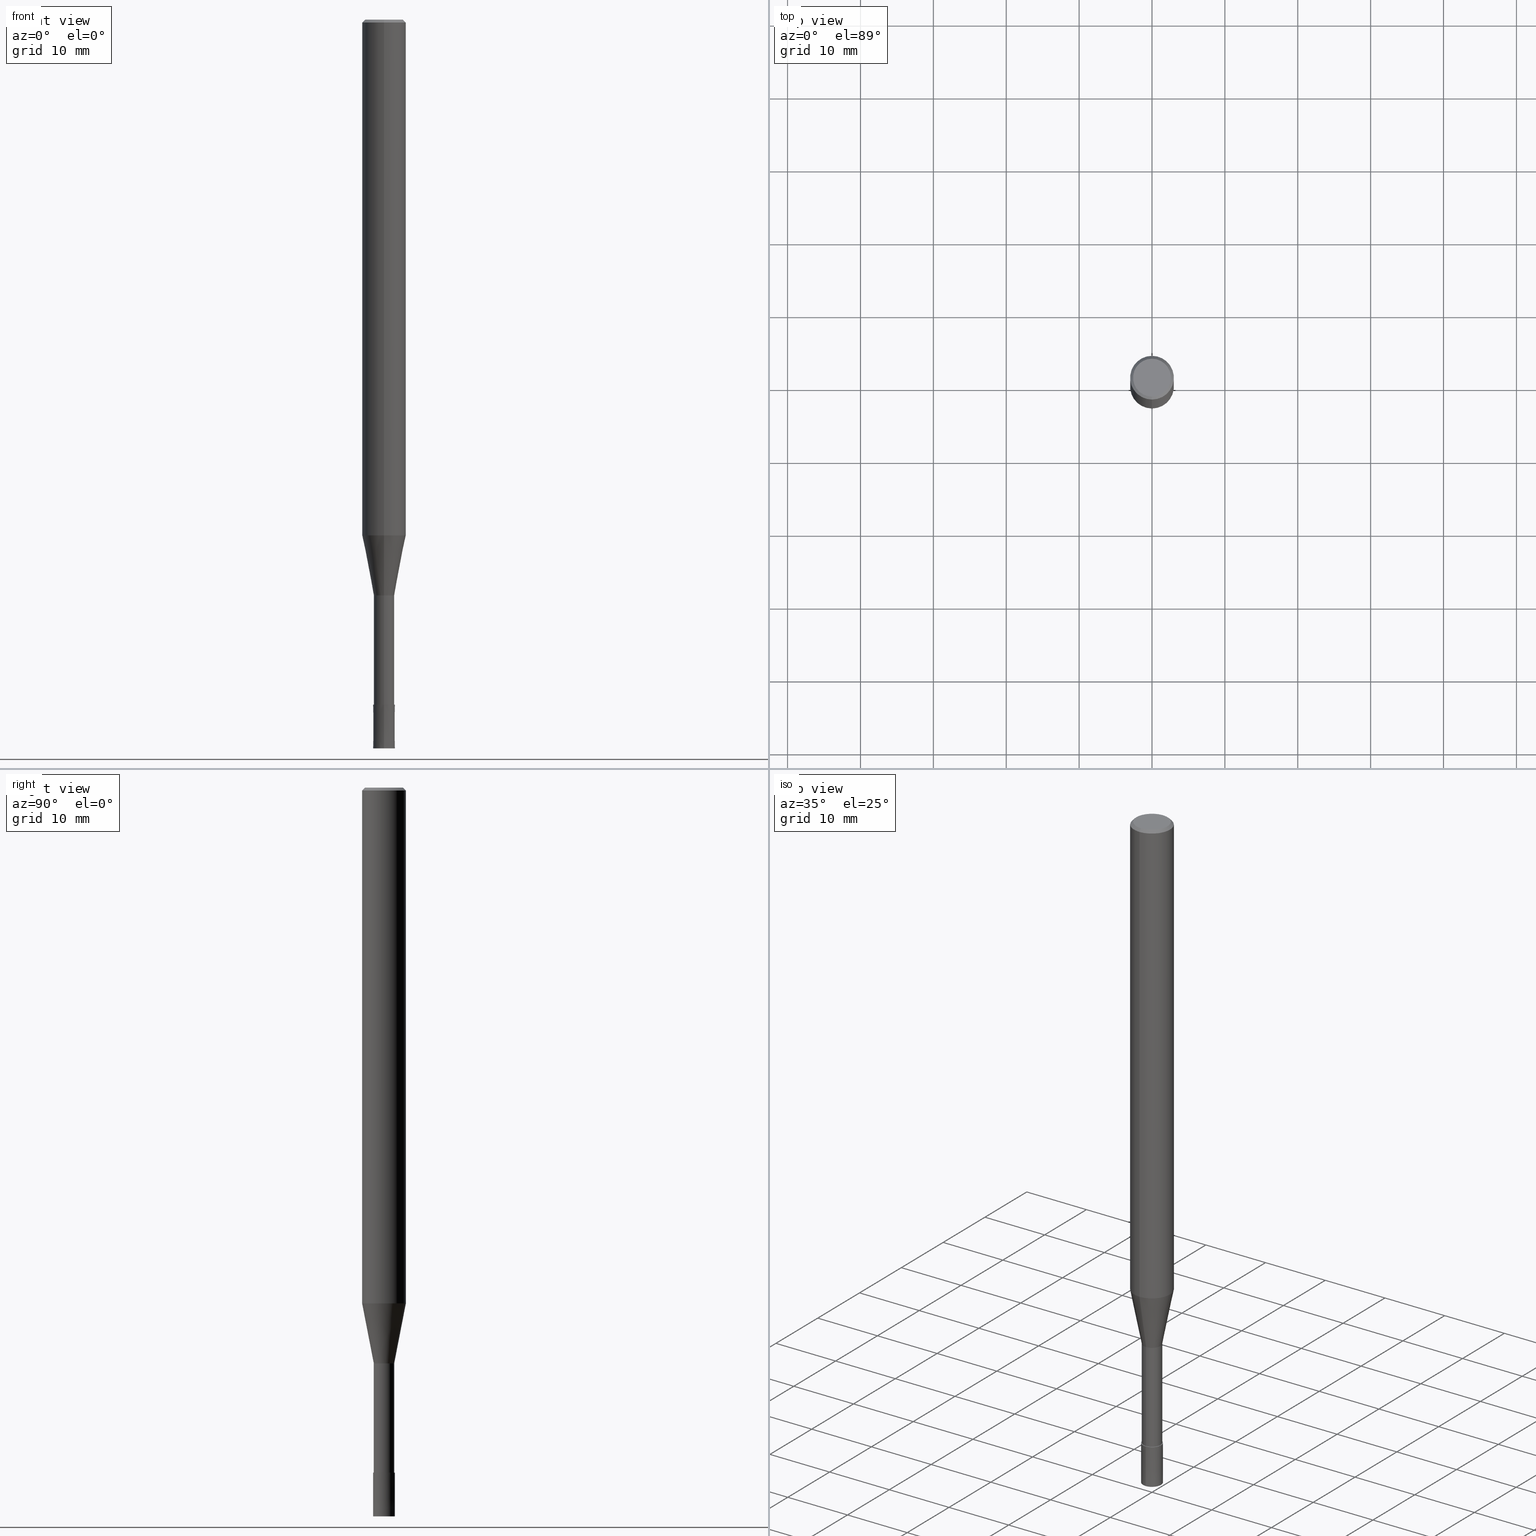
[diagram: canonical four-view strip — front | top / right | iso, engineering-drawing reading convention]
A machine part, canonical four-view strip (front | top / right | iso — engineering-drawing reading convention). The complete STEP part file that produces these views, byte-faithful:
ISO-10303-21;
HEADER;
FILE_DESCRIPTION(('no description'),'unknown implementation level');
FILE_NAME('CPRL2030-21-Huellk.stp','  ',('CIMSOURCE GmbH'),('CADClick - KiM GmbH - www.kimweb.de'),'unknown preprocess','ACIS','unknown authorization');
FILE_SCHEMA(('automotive_design'));
ENDSEC;
DATA;
#1=MECHANICAL_DESIGN_GEOMETRIC_PRESENTATION_REPRESENTATION(' ',(#14,#15,#16,#17,#18,#19,#20,#21,#22,#23,#24,#25,#26,#27,#28,#29,#30,#31,#32,#33,#34,#35,#36,#37,#38,#39,#40,#41,#42,#43,#44,#45,#46,#47,#48,#49,#50,#51,#52,#53,#54,#55,#56,#57,#58,#59,#60,#61,#62,#63,#64,#65,#66,#67,#68,#69,#70,#71,#72),#10);
#2=PRODUCT_DEFINITION_CONTEXT('',#73,'design');
#3=APPLICATION_PROTOCOL_DEFINITION('INTERNATIONAL STANDARD','automotive_design',1994,#73);
#4=PRODUCT_CATEGORY_RELATIONSHIP('NONE','NONE',#74,#75);
#5=SHAPE_DEFINITION_REPRESENTATION(#76,#77);
#6=PRODUCT_DEFINITION_CONTEXT('',#78,'design');
#7=APPLICATION_PROTOCOL_DEFINITION('INTERNATIONAL STANDARD','automotive_design',1994,#78);
#8=PRODUCT_CATEGORY_RELATIONSHIP('NONE','NONE',#79,#80);
#9=SHAPE_DEFINITION_REPRESENTATION(#81,#82);
#10= (GEOMETRIC_REPRESENTATION_CONTEXT(3)GLOBAL_UNCERTAINTY_ASSIGNED_CONTEXT((#85))GLOBAL_UNIT_ASSIGNED_CONTEXT((#87,#88,#89))REPRESENTATION_CONTEXT('NONE','WORKSPACE'));
#14=STYLED_ITEM('',(#91),#92);
#15=STYLED_ITEM('',(#93),#94);
#16=STYLED_ITEM('',(#95),#96);
#17=STYLED_ITEM('',(#97),#98);
#18=STYLED_ITEM('',(#99),#100);
#19=STYLED_ITEM('',(#101),#102);
#20=STYLED_ITEM('',(#103),#104);
#21=STYLED_ITEM('',(#105),#106);
#22=STYLED_ITEM('',(#107),#108);
#23=STYLED_ITEM('',(#109),#110);
#24=STYLED_ITEM('',(#111),#112);
#25=STYLED_ITEM('',(#113),#114);
#26=STYLED_ITEM('',(#115),#116);
#27=STYLED_ITEM('',(#117),#118);
#28=STYLED_ITEM('',(#119),#120);
#29=STYLED_ITEM('',(#121),#122);
#30=STYLED_ITEM('',(#123),#124);
#31=STYLED_ITEM('',(#125),#126);
#32=STYLED_ITEM('',(#127),#128);
#33=STYLED_ITEM('',(#129),#130);
#34=STYLED_ITEM('',(#131),#132);
#35=STYLED_ITEM('',(#133),#134);
#36=STYLED_ITEM('',(#135),#136);
#37=STYLED_ITEM('',(#137),#138);
#38=STYLED_ITEM('',(#139),#140);
#39=STYLED_ITEM('',(#141),#142);
#40=STYLED_ITEM('',(#143),#144);
#41=STYLED_ITEM('',(#145),#146);
#42=STYLED_ITEM('',(#147),#148);
#43=STYLED_ITEM('',(#149),#150);
#44=STYLED_ITEM('',(#151),#152);
#45=STYLED_ITEM('',(#153),#154);
#46=STYLED_ITEM('',(#155),#156);
#47=STYLED_ITEM('',(#157),#158);
#48=STYLED_ITEM('',(#159),#160);
#49=STYLED_ITEM('',(#161),#162);
#50=STYLED_ITEM('',(#163),#164);
#51=STYLED_ITEM('',(#165),#166);
#52=STYLED_ITEM('',(#167),#168);
#53=STYLED_ITEM('',(#169),#170);
#54=STYLED_ITEM('',(#171),#172);
#55=STYLED_ITEM('',(#173),#174);
#56=STYLED_ITEM('',(#175),#176);
#57=STYLED_ITEM('',(#177),#178);
#58=STYLED_ITEM('',(#179),#180);
#59=STYLED_ITEM('',(#181),#182);
#60=STYLED_ITEM('',(#183),#184);
#61=STYLED_ITEM('',(#185),#186);
#62=STYLED_ITEM('',(#187),#188);
#63=STYLED_ITEM('',(#189),#190);
#64=STYLED_ITEM('',(#191),#192);
#65=STYLED_ITEM('',(#193),#194);
#66=STYLED_ITEM('',(#195),#196);
#67=STYLED_ITEM('',(#197),#198);
#68=STYLED_ITEM('',(#199),#200);
#69=STYLED_ITEM('',(#201),#202);
#70=STYLED_ITEM('',(#203),#204);
#71=STYLED_ITEM('',(#205),#206);
#72=STYLED_ITEM('',(#207),#208);
#73=APPLICATION_CONTEXT(' ');
#74=PRODUCT_CATEGORY('part','NONE');
#75=PRODUCT_RELATED_PRODUCT_CATEGORY('detail',' ',(#209));
#76=PRODUCT_DEFINITION_SHAPE('NONE','NONE',#210);
#77=ADVANCED_BREP_SHAPE_REPRESENTATION('1',(#164,#211),#10);
#78=APPLICATION_CONTEXT(' ');
#79=PRODUCT_CATEGORY('part','NONE');
#80=PRODUCT_RELATED_PRODUCT_CATEGORY('detail',' ',(#212));
#81=PRODUCT_DEFINITION_SHAPE('NONE','NONE',#213);
#82=ADVANCED_BREP_SHAPE_REPRESENTATION('2',(#198,#214),#10);
#85=UNCERTAINTY_MEASURE_WITH_UNIT(LENGTH_MEASURE(1.0E-006),#87,'','');
#87= (CONVERSION_BASED_UNIT('MILLIMETRE',#217)LENGTH_UNIT()NAMED_UNIT(#220));
#88= (NAMED_UNIT(#222)PLANE_ANGLE_UNIT()SI_UNIT($,.RADIAN.));
#89= (NAMED_UNIT(#222)SOLID_ANGLE_UNIT()SI_UNIT($,.STERADIAN.));
#91=PRESENTATION_STYLE_ASSIGNMENT((#228));
#92=ADVANCED_FACE('',(#229),#230,.T.);
#93=PRESENTATION_STYLE_ASSIGNMENT((#231));
#94=EDGE_CURVE('',#208,#142,#232,.T.);
#95=PRESENTATION_STYLE_ASSIGNMENT((#233));
#96=VERTEX_POINT('',#234);
#97=PRESENTATION_STYLE_ASSIGNMENT((#235));
#98=VERTEX_POINT('',#236);
#99=PRESENTATION_STYLE_ASSIGNMENT((#237));
#100=ADVANCED_FACE('',(#238),#239,.T.);
#101=PRESENTATION_STYLE_ASSIGNMENT((#240));
#102=EDGE_CURVE('',#172,#208,#241,.T.);
#103=PRESENTATION_STYLE_ASSIGNMENT((#242));
#104=VERTEX_POINT('',#243);
#105=PRESENTATION_STYLE_ASSIGNMENT((#244));
#106=ADVANCED_FACE('',(#245),#246,.T.);
#107=PRESENTATION_STYLE_ASSIGNMENT((#247));
#108=ADVANCED_FACE('',(#248),#249,.T.);
#109=PRESENTATION_STYLE_ASSIGNMENT((#250));
#110=ADVANCED_FACE('',(#251),#252,.T.);
#111=PRESENTATION_STYLE_ASSIGNMENT((#253));
#112=VERTEX_POINT('',#254);
#113=PRESENTATION_STYLE_ASSIGNMENT((#255));
#114=ADVANCED_FACE('',(#256),#257,.T.);
#115=PRESENTATION_STYLE_ASSIGNMENT((#258));
#116=VERTEX_POINT('',#259);
#117=PRESENTATION_STYLE_ASSIGNMENT((#260));
#118=VERTEX_POINT('',#261);
#119=PRESENTATION_STYLE_ASSIGNMENT((#262));
#120=EDGE_CURVE('',#204,#112,#263,.T.);
#121=PRESENTATION_STYLE_ASSIGNMENT((#264));
#122=EDGE_CURVE('',#96,#194,#265,.T.);
#123=PRESENTATION_STYLE_ASSIGNMENT((#266));
#124=EDGE_CURVE('',#112,#204,#267,.T.);
#125=PRESENTATION_STYLE_ASSIGNMENT((#268));
#126=EDGE_CURVE('',#150,#116,#269,.T.);
#127=PRESENTATION_STYLE_ASSIGNMENT((#270));
#128=EDGE_CURVE('',#168,#118,#271,.T.);
#129=PRESENTATION_STYLE_ASSIGNMENT((#272));
#130=ADVANCED_FACE('',(#273),#274,.T.);
#131=PRESENTATION_STYLE_ASSIGNMENT((#275));
#132=EDGE_CURVE('',#98,#158,#276,.T.);
#133=PRESENTATION_STYLE_ASSIGNMENT((#277));
#134=ADVANCED_FACE('',(#278),#279,.T.);
#135=PRESENTATION_STYLE_ASSIGNMENT((#280));
#136=ADVANCED_FACE('',(#281),#282,.T.);
#137=PRESENTATION_STYLE_ASSIGNMENT((#283));
#138=EDGE_CURVE('',#96,#140,#284,.T.);
#139=PRESENTATION_STYLE_ASSIGNMENT((#285));
#140=VERTEX_POINT('',#286);
#141=PRESENTATION_STYLE_ASSIGNMENT((#287));
#142=VERTEX_POINT('',#288);
#143=PRESENTATION_STYLE_ASSIGNMENT((#289));
#144=ADVANCED_FACE('',(#290),#291,.T.);
#145=PRESENTATION_STYLE_ASSIGNMENT((#292));
#146=EDGE_CURVE('',#168,#150,#293,.T.);
#147=PRESENTATION_STYLE_ASSIGNMENT((#294));
#148=EDGE_CURVE('',#160,#140,#295,.T.);
#149=PRESENTATION_STYLE_ASSIGNMENT((#296));
#150=VERTEX_POINT('',#297);
#151=PRESENTATION_STYLE_ASSIGNMENT((#298));
#152=EDGE_CURVE('',#140,#96,#299,.T.);
#153=PRESENTATION_STYLE_ASSIGNMENT((#300));
#154=EDGE_CURVE('',#142,#104,#301,.T.);
#155=PRESENTATION_STYLE_ASSIGNMENT((#302));
#156=ADVANCED_FACE('',(#303),#304,.T.);
#157=PRESENTATION_STYLE_ASSIGNMENT((#305));
#158=VERTEX_POINT('',#306);
#159=PRESENTATION_STYLE_ASSIGNMENT((#307));
#160=VERTEX_POINT('',#308);
#161=PRESENTATION_STYLE_ASSIGNMENT((#309));
#162=EDGE_CURVE('',#158,#98,#310,.T.);
#163=PRESENTATION_STYLE_ASSIGNMENT((#311));
#164=MANIFOLD_SOLID_BREP('1',#312);
#165=PRESENTATION_STYLE_ASSIGNMENT((#313));
#166=EDGE_CURVE('',#204,#96,#314,.T.);
#167=PRESENTATION_STYLE_ASSIGNMENT((#315));
#168=VERTEX_POINT('',#316);
#169=PRESENTATION_STYLE_ASSIGNMENT((#317));
#170=EDGE_CURVE('',#116,#118,#318,.T.);
#171=PRESENTATION_STYLE_ASSIGNMENT((#319));
#172=VERTEX_POINT('',#320);
#173=PRESENTATION_STYLE_ASSIGNMENT((#321));
#174=EDGE_CURVE('',#160,#194,#322,.T.);
#175=PRESENTATION_STYLE_ASSIGNMENT((#323));
#176=ADVANCED_FACE('',(#324),#325,.T.);
#177=PRESENTATION_STYLE_ASSIGNMENT((#326));
#178=EDGE_CURVE('',#140,#112,#327,.T.);
#179=PRESENTATION_STYLE_ASSIGNMENT((#328));
#180=EDGE_CURVE('',#116,#150,#329,.T.);
#181=PRESENTATION_STYLE_ASSIGNMENT((#330));
#182=EDGE_CURVE('',#142,#158,#331,.T.);
#183=PRESENTATION_STYLE_ASSIGNMENT((#332));
#184=EDGE_CURVE('',#98,#104,#333,.T.);
#185=PRESENTATION_STYLE_ASSIGNMENT((#334));
#186=ADVANCED_FACE('',(#335,#336),#337,.T.);
#187=PRESENTATION_STYLE_ASSIGNMENT((#338));
#188=ADVANCED_FACE('',(#339),#340,.T.);
#189=PRESENTATION_STYLE_ASSIGNMENT((#341));
#190=EDGE_CURVE('',#194,#160,#342,.T.);
#191=PRESENTATION_STYLE_ASSIGNMENT((#343));
#192=EDGE_CURVE('',#208,#172,#344,.T.);
#193=PRESENTATION_STYLE_ASSIGNMENT((#345));
#194=VERTEX_POINT('',#346);
#195=PRESENTATION_STYLE_ASSIGNMENT((#347));
#196=EDGE_CURVE('',#118,#168,#348,.T.);
#197=PRESENTATION_STYLE_ASSIGNMENT((#349));
#198=MANIFOLD_SOLID_BREP('2',#350);
#199=PRESENTATION_STYLE_ASSIGNMENT((#351));
#200=EDGE_CURVE('',#104,#172,#352,.T.);
#201=PRESENTATION_STYLE_ASSIGNMENT((#353));
#202=ADVANCED_FACE('',(#354),#355,.T.);
#203=PRESENTATION_STYLE_ASSIGNMENT((#356));
#204=VERTEX_POINT('',#357);
#205=PRESENTATION_STYLE_ASSIGNMENT((#358));
#206=EDGE_CURVE('',#104,#142,#359,.T.);
#207=PRESENTATION_STYLE_ASSIGNMENT((#360));
#208=VERTEX_POINT('',#361);
#209=PRODUCT('1','1','PART-1-DESC',(#362));
#210=PRODUCT_DEFINITION('NONE','NONE',#363,#2);
#211=AXIS2_PLACEMENT_3D('',#364,#365,#366);
#212=PRODUCT('2','2','PART-2-DESC',(#367));
#213=PRODUCT_DEFINITION('NONE','NONE',#368,#6);
#214=AXIS2_PLACEMENT_3D('',#369,#370,#371);
#217=LENGTH_MEASURE_WITH_UNIT(LENGTH_MEASURE(1.0),#372);
#220=DIMENSIONAL_EXPONENTS(1.0,0.0,0.0,0.0,0.0,0.0,0.0);
#222=DIMENSIONAL_EXPONENTS(0.0,0.0,0.0,0.0,0.0,0.0,0.0);
#228=SURFACE_STYLE_USAGE(.BOTH.,#373);
#229=FACE_OUTER_BOUND('',#374,.T.);
#230=CONICAL_SURFACE('',#375,2.19995,0.191992735564386);
#231=CURVE_STYLE('',#376,POSITIVE_LENGTH_MEASURE(1.0E-006),#377);
#232=LINE('',#378,#379);
#233=POINT_STYLE(' ',#380,POSITIVE_LENGTH_MEASURE(1.0E-006),#381);
#234=CARTESIAN_POINT('',(0.0,1.39995,-79.0));
#235=POINT_STYLE(' ',#382,POSITIVE_LENGTH_MEASURE(1.0E-006),#383);
#236=CARTESIAN_POINT('',(0.0,2.6,0.0));
#237=SURFACE_STYLE_USAGE(.BOTH.,#384);
#238=FACE_OUTER_BOUND('',#385,.T.);
#239=PLANE('',#386);
#240=CURVE_STYLE('',#387,POSITIVE_LENGTH_MEASURE(1.0E-006),#388);
#241=CIRCLE('',#389,3.0);
#242=POINT_STYLE(' ',#390,POSITIVE_LENGTH_MEASURE(1.0E-006),#391);
#243=CARTESIAN_POINT('',(0.0,3.0,-0.400000000000006));
#244=SURFACE_STYLE_USAGE(.BOTH.,#392);
#245=FACE_OUTER_BOUND('',#393,.T.);
#246=CYLINDRICAL_SURFACE('',#394,3.0);
#247=SURFACE_STYLE_USAGE(.BOTH.,#395);
#248=FACE_OUTER_BOUND('',#396,.T.);
#249=PLANE('',#397);
#250=SURFACE_STYLE_USAGE(.BOTH.,#398);
#251=FACE_OUTER_BOUND('',#399,.T.);
#252=CONICAL_SURFACE('',#400,1.49995,1.66666666651216E-005);
#253=POINT_STYLE(' ',#401,POSITIVE_LENGTH_MEASURE(1.0E-006),#402);
#254=CARTESIAN_POINT('',(3.67375783114944E-016,-2.99995,-70.769));
#255=SURFACE_STYLE_USAGE(.BOTH.,#403);
#256=FACE_OUTER_BOUND('',#404,.T.);
#257=CYLINDRICAL_SURFACE('',#405,1.39995);
#258=POINT_STYLE(' ',#406,POSITIVE_LENGTH_MEASURE(1.0E-006),#407);
#259=CARTESIAN_POINT('',(1.83690953073357E-016,-1.5,-100.0));
#260=POINT_STYLE(' ',#408,POSITIVE_LENGTH_MEASURE(1.0E-006),#409);
#261=CARTESIAN_POINT('',(1.83678707009818E-016,-1.4999,-94.0));
#262=CURVE_STYLE('',#410,POSITIVE_LENGTH_MEASURE(1.0E-006),#411);
#263=CIRCLE('',#412,2.99995);
#264=CURVE_STYLE('',#413,POSITIVE_LENGTH_MEASURE(1.0E-006),#414);
#265=LINE('',#415,#416);
#266=CURVE_STYLE('',#417,POSITIVE_LENGTH_MEASURE(1.0E-006),#418);
#267=CIRCLE('',#419,2.99995);
#268=CURVE_STYLE('',#420,POSITIVE_LENGTH_MEASURE(1.0E-006),#421);
#269=CIRCLE('',#422,1.5);
#270=CURVE_STYLE('',#423,POSITIVE_LENGTH_MEASURE(1.0E-006),#424);
#271=CIRCLE('',#425,1.4999);
#272=SURFACE_STYLE_USAGE(.BOTH.,#426);
#273=FACE_OUTER_BOUND('',#427,.T.);
#274=CYLINDRICAL_SURFACE('',#428,3.0);
#275=CURVE_STYLE('',#429,POSITIVE_LENGTH_MEASURE(1.0E-006),#430);
#276=CIRCLE('',#431,2.6);
#277=SURFACE_STYLE_USAGE(.BOTH.,#432);
#278=FACE_OUTER_BOUND('',#433,.T.);
#279=CONICAL_SURFACE('',#434,2.19995,0.191992735564386);
#280=SURFACE_STYLE_USAGE(.BOTH.,#435);
#281=FACE_OUTER_BOUND('',#436,.T.);
#282=CONICAL_SURFACE('',#437,2.8,0.785398163397441);
#283=CURVE_STYLE('',#438,POSITIVE_LENGTH_MEASURE(1.0E-006),#439);
#284=CIRCLE('',#440,1.39995);
#285=POINT_STYLE(' ',#441,POSITIVE_LENGTH_MEASURE(1.0E-006),#442);
#286=CARTESIAN_POINT('',(1.71438766503364E-016,-1.39995,-79.0));
#287=POINT_STYLE(' ',#443,POSITIVE_LENGTH_MEASURE(1.0E-006),#444);
#288=CARTESIAN_POINT('',(3.67381906146713E-016,-3.0,-0.400000000000006));
#289=SURFACE_STYLE_USAGE(.BOTH.,#445);
#290=FACE_OUTER_BOUND('',#446,.T.);
#291=PLANE('',#447);
#292=CURVE_STYLE('',#448,POSITIVE_LENGTH_MEASURE(1.0E-006),#449);
#293=LINE('',#450,#451);
#294=CURVE_STYLE('',#452,POSITIVE_LENGTH_MEASURE(1.0E-006),#453);
#295=LINE('',#454,#455);
#296=POINT_STYLE(' ',#456,POSITIVE_LENGTH_MEASURE(1.0E-006),#457);
#297=CARTESIAN_POINT('',(0.0,1.5,-100.0));
#298=CURVE_STYLE('',#458,POSITIVE_LENGTH_MEASURE(1.0E-006),#459);
#299=CIRCLE('',#460,1.39995);
#300=CURVE_STYLE('',#461,POSITIVE_LENGTH_MEASURE(1.0E-006),#462);
#301=CIRCLE('',#463,3.0);
#302=SURFACE_STYLE_USAGE(.BOTH.,#464);
#303=FACE_OUTER_BOUND('',#465,.T.);
#304=CYLINDRICAL_SURFACE('',#466,1.39995);
#305=POINT_STYLE(' ',#467,POSITIVE_LENGTH_MEASURE(1.0E-006),#468);
#306=CARTESIAN_POINT('',(3.18397651993818E-016,-2.6,0.0));
#307=POINT_STYLE(' ',#469,POSITIVE_LENGTH_MEASURE(1.0E-006),#470);
#308=CARTESIAN_POINT('',(1.71438766503364E-016,-1.39995,-94.0));
#309=CURVE_STYLE('',#471,POSITIVE_LENGTH_MEASURE(1.0E-006),#472);
#310=CIRCLE('',#473,2.6);
#311=SURFACE_STYLE_USAGE(.BOTH.,#474);
#312=CLOSED_SHELL('',(#156,#134,#106,#188,#186,#176,#136,#130,#92,#114,#100));
#313=CURVE_STYLE('',#475,POSITIVE_LENGTH_MEASURE(1.0E-006),#476);
#314=LINE('',#477,#478);
#315=POINT_STYLE(' ',#479,POSITIVE_LENGTH_MEASURE(1.0E-006),#480);
#316=CARTESIAN_POINT('',(0.0,1.4999,-94.0));
#317=CURVE_STYLE('',#481,POSITIVE_LENGTH_MEASURE(1.0E-006),#482);
#318=LINE('',#483,#484);
#319=POINT_STYLE(' ',#485,POSITIVE_LENGTH_MEASURE(1.0E-006),#486);
#320=CARTESIAN_POINT('',(0.0,3.0,-70.769));
#321=CURVE_STYLE('',#487,POSITIVE_LENGTH_MEASURE(1.0E-006),#488);
#322=CIRCLE('',#489,1.39995);
#323=SURFACE_STYLE_USAGE(.BOTH.,#490);
#324=FACE_OUTER_BOUND('',#491,.T.);
#325=PLANE('',#492);
#326=CURVE_STYLE('',#493,POSITIVE_LENGTH_MEASURE(1.0E-006),#494);
#327=LINE('',#495,#496);
#328=CURVE_STYLE('',#497,POSITIVE_LENGTH_MEASURE(1.0E-006),#498);
#329=CIRCLE('',#499,1.5);
#330=CURVE_STYLE('',#500,POSITIVE_LENGTH_MEASURE(1.0E-006),#501);
#331=LINE('',#502,#503);
#332=CURVE_STYLE('',#504,POSITIVE_LENGTH_MEASURE(1.0E-006),#505);
#333=LINE('',#506,#507);
#334=SURFACE_STYLE_USAGE(.BOTH.,#508);
#335=FACE_OUTER_BOUND('',#509,.T.);
#336=FACE_BOUND('',#510,.T.);
#337=PLANE('',#511);
#338=SURFACE_STYLE_USAGE(.BOTH.,#512);
#339=FACE_OUTER_BOUND('',#513,.T.);
#340=CONICAL_SURFACE('',#514,2.8,0.785398163397441);
#341=CURVE_STYLE('',#515,POSITIVE_LENGTH_MEASURE(1.0E-006),#516);
#342=CIRCLE('',#517,1.39995);
#343=CURVE_STYLE('',#518,POSITIVE_LENGTH_MEASURE(1.0E-006),#519);
#344=CIRCLE('',#520,3.0);
#345=POINT_STYLE(' ',#521,POSITIVE_LENGTH_MEASURE(1.0E-006),#522);
#346=CARTESIAN_POINT('',(0.0,1.39995,-94.0));
#347=CURVE_STYLE('',#523,POSITIVE_LENGTH_MEASURE(1.0E-006),#524);
#348=CIRCLE('',#525,1.4999);
#349=SURFACE_STYLE_USAGE(.BOTH.,#526);
#350=CLOSED_SHELL('',(#110,#108,#202,#144));
#351=CURVE_STYLE('',#527,POSITIVE_LENGTH_MEASURE(1.0E-006),#528);
#352=LINE('',#529,#530);
#353=SURFACE_STYLE_USAGE(.BOTH.,#531);
#354=FACE_OUTER_BOUND('',#532,.T.);
#355=CONICAL_SURFACE('',#533,1.49995,1.66666666651216E-005);
#356=POINT_STYLE(' ',#534,POSITIVE_LENGTH_MEASURE(1.0E-006),#535);
#357=CARTESIAN_POINT('',(0.0,2.99995,-70.769));
#358=CURVE_STYLE('',#536,POSITIVE_LENGTH_MEASURE(1.0E-006),#537);
#359=CIRCLE('',#538,3.0);
#360=POINT_STYLE(' ',#539,POSITIVE_LENGTH_MEASURE(1.0E-006),#540);
#361=CARTESIAN_POINT('',(3.67381906146713E-016,-3.0,-70.769));
#362=PRODUCT_CONTEXT('',#73,'mechanical');
#363=PRODUCT_DEFINITION_FORMATION_WITH_SPECIFIED_SOURCE(' ','NONE',#209,.NOT_KNOWN.);
#364=CARTESIAN_POINT('',(0.0,0.0,0.0));
#365=DIRECTION('',(0.0,0.0,1.0));
#366=DIRECTION('',(1.0,0.0,0.0));
#367=PRODUCT_CONTEXT('',#78,'mechanical');
#368=PRODUCT_DEFINITION_FORMATION_WITH_SPECIFIED_SOURCE(' ','NONE',#212,.NOT_KNOWN.);
#369=CARTESIAN_POINT('',(0.0,0.0,0.0));
#370=DIRECTION('',(0.0,0.0,1.0));
#371=DIRECTION('',(1.0,0.0,0.0));
#372= (NAMED_UNIT(#220)LENGTH_UNIT()SI_UNIT(.MILLI.,.METRE.));
#373=SURFACE_SIDE_STYLE('',(#542));
#374=EDGE_LOOP('',(#543,#544,#545,#546));
#375=AXIS2_PLACEMENT_3D('',#547,#548,#549);
#376=DRAUGHTING_PRE_DEFINED_CURVE_FONT('continuous');
#377=COLOUR_RGB('',0.498039215803146,0.498039215803146,0.498039215803146);
#378=CARTESIAN_POINT('',(3.67381906146713E-016,-3.0,-35.5845));
#379=VECTOR('',#550,1.0);
#380=PRE_DEFINED_MARKER('');
#381=COLOUR_RGB('',0.498039215803146,0.498039215803146,0.498039215803146);
#382=PRE_DEFINED_MARKER('');
#383=COLOUR_RGB('',0.498039215803146,0.498039215803146,0.498039215803146);
#384=SURFACE_SIDE_STYLE('',(#551));
#385=EDGE_LOOP('',(#552,#553));
#386=AXIS2_PLACEMENT_3D('',#554,#555,#556);
#387=DRAUGHTING_PRE_DEFINED_CURVE_FONT('continuous');
#388=COLOUR_RGB('',0.498039215803146,0.498039215803146,0.498039215803146);
#389=AXIS2_PLACEMENT_3D('',#557,#558,#559);
#390=PRE_DEFINED_MARKER('');
#391=COLOUR_RGB('',0.498039215803146,0.498039215803146,0.498039215803146);
#392=SURFACE_SIDE_STYLE('',(#560));
#393=EDGE_LOOP('',(#561,#562,#563,#564));
#394=AXIS2_PLACEMENT_3D('',#565,#566,#567);
#395=SURFACE_SIDE_STYLE('',(#568));
#396=EDGE_LOOP('',(#569,#570));
#397=AXIS2_PLACEMENT_3D('',#571,#572,#573);
#398=SURFACE_SIDE_STYLE('',(#574));
#399=EDGE_LOOP('',(#575,#576,#577,#578));
#400=AXIS2_PLACEMENT_3D('',#579,#580,#581);
#401=PRE_DEFINED_MARKER('');
#402=COLOUR_RGB('',0.498039215803146,0.498039215803146,0.498039215803146);
#403=SURFACE_SIDE_STYLE('',(#582));
#404=EDGE_LOOP('',(#583,#584,#585,#586));
#405=AXIS2_PLACEMENT_3D('',#587,#588,#589);
#406=PRE_DEFINED_MARKER('');
#407=COLOUR_RGB('',0.800000011920929,0.800000011920929,0.800000011920929);
#408=PRE_DEFINED_MARKER('');
#409=COLOUR_RGB('',0.800000011920929,0.800000011920929,0.800000011920929);
#410=DRAUGHTING_PRE_DEFINED_CURVE_FONT('continuous');
#411=COLOUR_RGB('',0.498039215803146,0.498039215803146,0.498039215803146);
#412=AXIS2_PLACEMENT_3D('',#590,#591,#592);
#413=DRAUGHTING_PRE_DEFINED_CURVE_FONT('continuous');
#414=COLOUR_RGB('',0.498039215803146,0.498039215803146,0.498039215803146);
#415=CARTESIAN_POINT('',(-1.71438766503364E-016,1.39995,-86.5));
#416=VECTOR('',#593,1.0);
#417=DRAUGHTING_PRE_DEFINED_CURVE_FONT('continuous');
#418=COLOUR_RGB('',0.498039215803146,0.498039215803146,0.498039215803146);
#419=AXIS2_PLACEMENT_3D('',#594,#595,#596);
#420=DRAUGHTING_PRE_DEFINED_CURVE_FONT('continuous');
#421=COLOUR_RGB('',0.800000011920929,0.800000011920929,0.800000011920929);
#422=AXIS2_PLACEMENT_3D('',#597,#598,#599);
#423=DRAUGHTING_PRE_DEFINED_CURVE_FONT('continuous');
#424=COLOUR_RGB('',0.800000011920929,0.800000011920929,0.800000011920929);
#425=AXIS2_PLACEMENT_3D('',#600,#601,#602);
#426=SURFACE_SIDE_STYLE('',(#603));
#427=EDGE_LOOP('',(#604,#605,#606,#607));
#428=AXIS2_PLACEMENT_3D('',#608,#609,#610);
#429=DRAUGHTING_PRE_DEFINED_CURVE_FONT('continuous');
#430=COLOUR_RGB('',0.498039215803146,0.498039215803146,0.498039215803146);
#431=AXIS2_PLACEMENT_3D('',#611,#612,#613);
#432=SURFACE_SIDE_STYLE('',(#614));
#433=EDGE_LOOP('',(#615,#616,#617,#618));
#434=AXIS2_PLACEMENT_3D('',#619,#620,#621);
#435=SURFACE_SIDE_STYLE('',(#622));
#436=EDGE_LOOP('',(#623,#624,#625,#626));
#437=AXIS2_PLACEMENT_3D('',#627,#628,#629);
#438=DRAUGHTING_PRE_DEFINED_CURVE_FONT('continuous');
#439=COLOUR_RGB('',0.498039215803146,0.498039215803146,0.498039215803146);
#440=AXIS2_PLACEMENT_3D('',#630,#631,#632);
#441=PRE_DEFINED_MARKER('');
#442=COLOUR_RGB('',0.498039215803146,0.498039215803146,0.498039215803146);
#443=PRE_DEFINED_MARKER('');
#444=COLOUR_RGB('',0.498039215803146,0.498039215803146,0.498039215803146);
#445=SURFACE_SIDE_STYLE('',(#633));
#446=EDGE_LOOP('',(#634,#635));
#447=AXIS2_PLACEMENT_3D('',#636,#637,#638);
#448=DRAUGHTING_PRE_DEFINED_CURVE_FONT('continuous');
#449=COLOUR_RGB('',0.800000011920929,0.800000011920929,0.800000011920929);
#450=CARTESIAN_POINT('',(-1.83684830041587E-016,1.49995,-97.0));
#451=VECTOR('',#639,1.0);
#452=DRAUGHTING_PRE_DEFINED_CURVE_FONT('continuous');
#453=COLOUR_RGB('',0.498039215803146,0.498039215803146,0.498039215803146);
#454=CARTESIAN_POINT('',(1.71438766503364E-016,-1.39995,-86.5));
#455=VECTOR('',#640,1.0);
#456=PRE_DEFINED_MARKER('');
#457=COLOUR_RGB('',0.800000011920929,0.800000011920929,0.800000011920929);
#458=DRAUGHTING_PRE_DEFINED_CURVE_FONT('continuous');
#459=COLOUR_RGB('',0.498039215803146,0.498039215803146,0.498039215803146);
#460=AXIS2_PLACEMENT_3D('',#641,#642,#643);
#461=DRAUGHTING_PRE_DEFINED_CURVE_FONT('continuous');
#462=COLOUR_RGB('',0.498039215803146,0.498039215803146,0.498039215803146);
#463=AXIS2_PLACEMENT_3D('',#644,#645,#646);
#464=SURFACE_SIDE_STYLE('',(#647));
#465=EDGE_LOOP('',(#648,#649,#650,#651));
#466=AXIS2_PLACEMENT_3D('',#652,#653,#654);
#467=PRE_DEFINED_MARKER('');
#468=COLOUR_RGB('',0.498039215803146,0.498039215803146,0.498039215803146);
#469=PRE_DEFINED_MARKER('');
#470=COLOUR_RGB('',0.498039215803146,0.498039215803146,0.498039215803146);
#471=DRAUGHTING_PRE_DEFINED_CURVE_FONT('continuous');
#472=COLOUR_RGB('',0.498039215803146,0.498039215803146,0.498039215803146);
#473=AXIS2_PLACEMENT_3D('',#655,#656,#657);
#474=SURFACE_SIDE_STYLE('',(#658));
#475=DRAUGHTING_PRE_DEFINED_CURVE_FONT('continuous');
#476=COLOUR_RGB('',0.498039215803146,0.498039215803146,0.498039215803146);
#477=CARTESIAN_POINT('',(-2.69407274809154E-016,2.19995,-74.8845));
#478=VECTOR('',#659,1.0);
#479=PRE_DEFINED_MARKER('');
#480=COLOUR_RGB('',0.800000011920929,0.800000011920929,0.800000011920929);
#481=DRAUGHTING_PRE_DEFINED_CURVE_FONT('continuous');
#482=COLOUR_RGB('',0.800000011920929,0.800000011920929,0.800000011920929);
#483=CARTESIAN_POINT('',(1.83684830041587E-016,-1.49995,-97.0));
#484=VECTOR('',#660,1.0);
#485=PRE_DEFINED_MARKER('');
#486=COLOUR_RGB('',0.498039215803146,0.498039215803146,0.498039215803146);
#487=DRAUGHTING_PRE_DEFINED_CURVE_FONT('continuous');
#488=COLOUR_RGB('',0.498039215803146,0.498039215803146,0.498039215803146);
#489=AXIS2_PLACEMENT_3D('',#661,#662,#663);
#490=SURFACE_SIDE_STYLE('',(#664));
#491=EDGE_LOOP('',(#665,#666));
#492=AXIS2_PLACEMENT_3D('',#667,#668,#669);
#493=DRAUGHTING_PRE_DEFINED_CURVE_FONT('continuous');
#494=COLOUR_RGB('',0.498039215803146,0.498039215803146,0.498039215803146);
#495=CARTESIAN_POINT('',(2.69407274809154E-016,-2.19995,-74.8845));
#496=VECTOR('',#670,1.0);
#497=DRAUGHTING_PRE_DEFINED_CURVE_FONT('continuous');
#498=COLOUR_RGB('',0.800000011920929,0.800000011920929,0.800000011920929);
#499=AXIS2_PLACEMENT_3D('',#671,#672,#673);
#500=DRAUGHTING_PRE_DEFINED_CURVE_FONT('continuous');
#501=COLOUR_RGB('',0.498039215803146,0.498039215803146,0.498039215803146);
#502=CARTESIAN_POINT('',(3.42889779070266E-016,-2.8,-0.200000000000003));
#503=VECTOR('',#674,1.0);
#504=DRAUGHTING_PRE_DEFINED_CURVE_FONT('continuous');
#505=COLOUR_RGB('',0.498039215803146,0.498039215803146,0.498039215803146);
#506=CARTESIAN_POINT('',(-3.42889779070266E-016,2.8,-0.200000000000003));
#507=VECTOR('',#675,1.0);
#508=SURFACE_SIDE_STYLE('',(#676));
#509=EDGE_LOOP('',(#677,#678));
#510=EDGE_LOOP('',(#679,#680));
#511=AXIS2_PLACEMENT_3D('',#681,#682,#683);
#512=SURFACE_SIDE_STYLE('',(#684));
#513=EDGE_LOOP('',(#685,#686,#687,#688));
#514=AXIS2_PLACEMENT_3D('',#689,#690,#691);
#515=DRAUGHTING_PRE_DEFINED_CURVE_FONT('continuous');
#516=COLOUR_RGB('',0.498039215803146,0.498039215803146,0.498039215803146);
#517=AXIS2_PLACEMENT_3D('',#692,#693,#694);
#518=DRAUGHTING_PRE_DEFINED_CURVE_FONT('continuous');
#519=COLOUR_RGB('',0.498039215803146,0.498039215803146,0.498039215803146);
#520=AXIS2_PLACEMENT_3D('',#695,#696,#697);
#521=PRE_DEFINED_MARKER('');
#522=COLOUR_RGB('',0.498039215803146,0.498039215803146,0.498039215803146);
#523=DRAUGHTING_PRE_DEFINED_CURVE_FONT('continuous');
#524=COLOUR_RGB('',0.800000011920929,0.800000011920929,0.800000011920929);
#525=AXIS2_PLACEMENT_3D('',#698,#699,#700);
#526=SURFACE_SIDE_STYLE('',(#701));
#527=DRAUGHTING_PRE_DEFINED_CURVE_FONT('continuous');
#528=COLOUR_RGB('',0.498039215803146,0.498039215803146,0.498039215803146);
#529=CARTESIAN_POINT('',(-3.67381906146713E-016,3.0,-35.5845));
#530=VECTOR('',#702,1.0);
#531=SURFACE_SIDE_STYLE('',(#703));
#532=EDGE_LOOP('',(#704,#705,#706,#707));
#533=AXIS2_PLACEMENT_3D('',#708,#709,#710);
#534=PRE_DEFINED_MARKER('');
#535=COLOUR_RGB('',0.498039215803146,0.498039215803146,0.498039215803146);
#536=DRAUGHTING_PRE_DEFINED_CURVE_FONT('continuous');
#537=COLOUR_RGB('',0.498039215803146,0.498039215803146,0.498039215803146);
#538=AXIS2_PLACEMENT_3D('',#711,#712,#713);
#539=PRE_DEFINED_MARKER('');
#540=COLOUR_RGB('',0.498039215803146,0.498039215803146,0.498039215803146);
#542=SURFACE_STYLE_FILL_AREA(#714);
#543=ORIENTED_EDGE('',*,*,#166,.T.);
#544=ORIENTED_EDGE('',*,*,#152,.F.);
#545=ORIENTED_EDGE('',*,*,#178,.T.);
#546=ORIENTED_EDGE('',*,*,#124,.T.);
#547=CARTESIAN_POINT('',(0.0,0.0,-74.8845));
#548=DIRECTION('',(-0.0,-0.0,1.0));
#549=DIRECTION('',(0.0,1.0,0.0));
#550=DIRECTION('',(-0.0,-0.0,1.0));
#551=SURFACE_STYLE_FILL_AREA(#715);
#552=ORIENTED_EDGE('',*,*,#190,.T.);
#553=ORIENTED_EDGE('',*,*,#174,.T.);
#554=CARTESIAN_POINT('',(0.0,0.699975,-94.0));
#555=DIRECTION('',(0.0,0.0,-1.0));
#556=DIRECTION('',(0.0,1.0,0.0));
#557=CARTESIAN_POINT('',(0.0,0.0,-70.769));
#558=DIRECTION('',(0.0,0.0,-1.0));
#559=DIRECTION('',(0.0,1.0,0.0));
#560=SURFACE_STYLE_FILL_AREA(#716);
#561=ORIENTED_EDGE('',*,*,#200,.F.);
#562=ORIENTED_EDGE('',*,*,#206,.T.);
#563=ORIENTED_EDGE('',*,*,#94,.F.);
#564=ORIENTED_EDGE('',*,*,#102,.F.);
#565=CARTESIAN_POINT('',(0.0,0.0,-35.5845));
#566=DIRECTION('',(-0.0,-0.0,1.0));
#567=DIRECTION('',(0.0,1.0,0.0));
#568=SURFACE_STYLE_FILL_AREA(#717);
#569=ORIENTED_EDGE('',*,*,#128,.F.);
#570=ORIENTED_EDGE('',*,*,#196,.F.);
#571=CARTESIAN_POINT('',(0.0,0.74995,-94.0));
#572=DIRECTION('',(-0.0,0.0,1.0));
#573=DIRECTION('',(0.0,-1.0,0.0));
#574=SURFACE_STYLE_FILL_AREA(#718);
#575=ORIENTED_EDGE('',*,*,#146,.F.);
#576=ORIENTED_EDGE('',*,*,#128,.T.);
#577=ORIENTED_EDGE('',*,*,#170,.F.);
#578=ORIENTED_EDGE('',*,*,#126,.F.);
#579=CARTESIAN_POINT('',(0.0,0.0,-97.0));
#580=DIRECTION('',(0.0,-0.0,-1.0));
#581=DIRECTION('',(0.0,1.0,0.0));
#582=SURFACE_STYLE_FILL_AREA(#719);
#583=ORIENTED_EDGE('',*,*,#122,.T.);
#584=ORIENTED_EDGE('',*,*,#174,.F.);
#585=ORIENTED_EDGE('',*,*,#148,.T.);
#586=ORIENTED_EDGE('',*,*,#152,.T.);
#587=CARTESIAN_POINT('',(0.0,0.0,-86.5));
#588=DIRECTION('',(-0.0,-0.0,1.0));
#589=DIRECTION('',(0.0,1.0,0.0));
#590=CARTESIAN_POINT('',(0.0,0.0,-70.769));
#591=DIRECTION('',(0.0,0.0,-1.0));
#592=DIRECTION('',(0.0,1.0,0.0));
#593=DIRECTION('',(0.0,0.0,-1.0));
#594=CARTESIAN_POINT('',(0.0,0.0,-70.769));
#595=DIRECTION('',(0.0,0.0,-1.0));
#596=DIRECTION('',(0.0,1.0,0.0));
#597=CARTESIAN_POINT('',(0.0,0.0,-100.0));
#598=DIRECTION('',(0.0,0.0,-1.0));
#599=DIRECTION('',(0.0,1.0,0.0));
#600=CARTESIAN_POINT('',(0.0,0.0,-94.0));
#601=DIRECTION('',(0.0,0.0,-1.0));
#602=DIRECTION('',(0.0,1.0,0.0));
#603=SURFACE_STYLE_FILL_AREA(#720);
#604=ORIENTED_EDGE('',*,*,#200,.T.);
#605=ORIENTED_EDGE('',*,*,#192,.F.);
#606=ORIENTED_EDGE('',*,*,#94,.T.);
#607=ORIENTED_EDGE('',*,*,#154,.T.);
#608=CARTESIAN_POINT('',(0.0,0.0,-35.5845));
#609=DIRECTION('',(-0.0,-0.0,1.0));
#610=DIRECTION('',(0.0,1.0,0.0));
#611=CARTESIAN_POINT('',(0.0,0.0,0.0));
#612=DIRECTION('',(0.0,0.0,-1.0));
#613=DIRECTION('',(0.0,1.0,0.0));
#614=SURFACE_STYLE_FILL_AREA(#721);
#615=ORIENTED_EDGE('',*,*,#166,.F.);
#616=ORIENTED_EDGE('',*,*,#120,.T.);
#617=ORIENTED_EDGE('',*,*,#178,.F.);
#618=ORIENTED_EDGE('',*,*,#138,.F.);
#619=CARTESIAN_POINT('',(0.0,0.0,-74.8845));
#620=DIRECTION('',(-0.0,-0.0,1.0));
#621=DIRECTION('',(0.0,1.0,0.0));
#622=SURFACE_STYLE_FILL_AREA(#722);
#623=ORIENTED_EDGE('',*,*,#184,.T.);
#624=ORIENTED_EDGE('',*,*,#154,.F.);
#625=ORIENTED_EDGE('',*,*,#182,.T.);
#626=ORIENTED_EDGE('',*,*,#162,.T.);
#627=CARTESIAN_POINT('',(0.0,0.0,-0.200000000000003));
#628=DIRECTION('',(0.0,-0.0,-1.0));
#629=DIRECTION('',(0.0,1.0,0.0));
#630=CARTESIAN_POINT('',(0.0,0.0,-79.0));
#631=DIRECTION('',(0.0,0.0,-1.0));
#632=DIRECTION('',(0.0,1.0,0.0));
#633=SURFACE_STYLE_FILL_AREA(#723);
#634=ORIENTED_EDGE('',*,*,#126,.T.);
#635=ORIENTED_EDGE('',*,*,#180,.T.);
#636=CARTESIAN_POINT('',(0.0,0.7475,-100.0));
#637=DIRECTION('',(0.0,0.0,-1.0));
#638=DIRECTION('',(0.0,1.0,0.0));
#639=DIRECTION('',(-2.04101058942026E-021,1.666666666435E-005,-0.999999999861111));
#640=DIRECTION('',(-0.0,-0.0,1.0));
#641=CARTESIAN_POINT('',(0.0,0.0,-79.0));
#642=DIRECTION('',(0.0,0.0,-1.0));
#643=DIRECTION('',(0.0,1.0,0.0));
#644=CARTESIAN_POINT('',(0.0,0.0,-0.400000000000006));
#645=DIRECTION('',(0.0,0.0,-1.0));
#646=DIRECTION('',(0.0,1.0,0.0));
#647=SURFACE_STYLE_FILL_AREA(#724);
#648=ORIENTED_EDGE('',*,*,#122,.F.);
#649=ORIENTED_EDGE('',*,*,#138,.T.);
#650=ORIENTED_EDGE('',*,*,#148,.F.);
#651=ORIENTED_EDGE('',*,*,#190,.F.);
#652=CARTESIAN_POINT('',(0.0,0.0,-86.5));
#653=DIRECTION('',(-0.0,-0.0,1.0));
#654=DIRECTION('',(0.0,1.0,0.0));
#655=CARTESIAN_POINT('',(0.0,0.0,0.0));
#656=DIRECTION('',(0.0,0.0,-1.0));
#657=DIRECTION('',(0.0,1.0,0.0));
#658=SURFACE_STYLE_FILL_AREA(#725);
#659=DIRECTION('',(2.33673743245985E-017,-0.190815393466331,-0.981625939763355));
#660=DIRECTION('',(-2.04101058942026E-021,1.666666666435E-005,0.999999999861111));
#661=CARTESIAN_POINT('',(0.0,0.0,-94.0));
#662=DIRECTION('',(0.0,0.0,-1.0));
#663=DIRECTION('',(0.0,1.0,0.0));
#664=SURFACE_STYLE_FILL_AREA(#726);
#665=ORIENTED_EDGE('',*,*,#132,.F.);
#666=ORIENTED_EDGE('',*,*,#162,.F.);
#667=CARTESIAN_POINT('',(0.0,1.3,0.0));
#668=DIRECTION('',(-0.0,0.0,1.0));
#669=DIRECTION('',(0.0,-1.0,0.0));
#670=DIRECTION('',(2.33673743245985E-017,-0.190815393466331,0.981625939763355));
#671=CARTESIAN_POINT('',(0.0,0.0,-100.0));
#672=DIRECTION('',(0.0,0.0,-1.0));
#673=DIRECTION('',(0.0,1.0,0.0));
#674=DIRECTION('',(-8.65927457071929E-017,0.707106781186542,0.707106781186553));
#675=DIRECTION('',(-8.65927457071929E-017,0.707106781186542,-0.707106781186553));
#676=SURFACE_STYLE_FILL_AREA(#727);
#677=ORIENTED_EDGE('',*,*,#102,.T.);
#678=ORIENTED_EDGE('',*,*,#192,.T.);
#679=ORIENTED_EDGE('',*,*,#120,.F.);
#680=ORIENTED_EDGE('',*,*,#124,.F.);
#681=CARTESIAN_POINT('',(0.0,1.5,-70.769));
#682=DIRECTION('',(0.0,0.0,-1.0));
#683=DIRECTION('',(0.0,1.0,0.0));
#684=SURFACE_STYLE_FILL_AREA(#728);
#685=ORIENTED_EDGE('',*,*,#184,.F.);
#686=ORIENTED_EDGE('',*,*,#132,.T.);
#687=ORIENTED_EDGE('',*,*,#182,.F.);
#688=ORIENTED_EDGE('',*,*,#206,.F.);
#689=CARTESIAN_POINT('',(0.0,0.0,-0.200000000000003));
#690=DIRECTION('',(0.0,-0.0,-1.0));
#691=DIRECTION('',(0.0,1.0,0.0));
#692=CARTESIAN_POINT('',(0.0,0.0,-94.0));
#693=DIRECTION('',(0.0,0.0,-1.0));
#694=DIRECTION('',(0.0,1.0,0.0));
#695=CARTESIAN_POINT('',(0.0,0.0,-70.769));
#696=DIRECTION('',(0.0,0.0,-1.0));
#697=DIRECTION('',(0.0,1.0,0.0));
#698=CARTESIAN_POINT('',(0.0,0.0,-94.0));
#699=DIRECTION('',(0.0,0.0,-1.0));
#700=DIRECTION('',(0.0,1.0,0.0));
#701=SURFACE_STYLE_FILL_AREA(#729);
#702=DIRECTION('',(0.0,0.0,-1.0));
#703=SURFACE_STYLE_FILL_AREA(#730);
#704=ORIENTED_EDGE('',*,*,#146,.T.);
#705=ORIENTED_EDGE('',*,*,#180,.F.);
#706=ORIENTED_EDGE('',*,*,#170,.T.);
#707=ORIENTED_EDGE('',*,*,#196,.T.);
#708=CARTESIAN_POINT('',(0.0,0.0,-97.0));
#709=DIRECTION('',(0.0,-0.0,-1.0));
#710=DIRECTION('',(0.0,1.0,0.0));
#711=CARTESIAN_POINT('',(0.0,0.0,-0.400000000000006));
#712=DIRECTION('',(0.0,0.0,-1.0));
#713=DIRECTION('',(0.0,1.0,0.0));
#714=FILL_AREA_STYLE('',(#731));
#715=FILL_AREA_STYLE('',(#732));
#716=FILL_AREA_STYLE('',(#733));
#717=FILL_AREA_STYLE('',(#734));
#718=FILL_AREA_STYLE('',(#735));
#719=FILL_AREA_STYLE('',(#736));
#720=FILL_AREA_STYLE('',(#737));
#721=FILL_AREA_STYLE('',(#738));
#722=FILL_AREA_STYLE('',(#739));
#723=FILL_AREA_STYLE('',(#740));
#724=FILL_AREA_STYLE('',(#741));
#725=FILL_AREA_STYLE('',(#742));
#726=FILL_AREA_STYLE('',(#743));
#727=FILL_AREA_STYLE('',(#744));
#728=FILL_AREA_STYLE('',(#745));
#729=FILL_AREA_STYLE('',(#746));
#730=FILL_AREA_STYLE('',(#747));
#731=FILL_AREA_STYLE_COLOUR('',#748);
#732=FILL_AREA_STYLE_COLOUR('',#749);
#733=FILL_AREA_STYLE_COLOUR('',#750);
#734=FILL_AREA_STYLE_COLOUR('',#751);
#735=FILL_AREA_STYLE_COLOUR('',#752);
#736=FILL_AREA_STYLE_COLOUR('',#753);
#737=FILL_AREA_STYLE_COLOUR('',#754);
#738=FILL_AREA_STYLE_COLOUR('',#755);
#739=FILL_AREA_STYLE_COLOUR('',#756);
#740=FILL_AREA_STYLE_COLOUR('',#757);
#741=FILL_AREA_STYLE_COLOUR('',#758);
#742=FILL_AREA_STYLE_COLOUR('',#759);
#743=FILL_AREA_STYLE_COLOUR('',#760);
#744=FILL_AREA_STYLE_COLOUR('',#761);
#745=FILL_AREA_STYLE_COLOUR('',#762);
#746=FILL_AREA_STYLE_COLOUR('',#763);
#747=FILL_AREA_STYLE_COLOUR('',#764);
#748=COLOUR_RGB('',0.498039215803146,0.498039215803146,0.498039215803146);
#749=COLOUR_RGB('',0.498039215803146,0.498039215803146,0.498039215803146);
#750=COLOUR_RGB('',0.498039215803146,0.498039215803146,0.498039215803146);
#751=COLOUR_RGB('',0.800000011920929,0.800000011920929,0.800000011920929);
#752=COLOUR_RGB('',0.800000011920929,0.800000011920929,0.800000011920929);
#753=COLOUR_RGB('',0.498039215803146,0.498039215803146,0.498039215803146);
#754=COLOUR_RGB('',0.498039215803146,0.498039215803146,0.498039215803146);
#755=COLOUR_RGB('',0.498039215803146,0.498039215803146,0.498039215803146);
#756=COLOUR_RGB('',0.498039215803146,0.498039215803146,0.498039215803146);
#757=COLOUR_RGB('',0.800000011920929,0.800000011920929,0.800000011920929);
#758=COLOUR_RGB('',0.498039215803146,0.498039215803146,0.498039215803146);
#759=COLOUR_RGB('',0.498039215803146,0.498039215803146,0.498039215803146);
#760=COLOUR_RGB('',0.498039215803146,0.498039215803146,0.498039215803146);
#761=COLOUR_RGB('',0.498039215803146,0.498039215803146,0.498039215803146);
#762=COLOUR_RGB('',0.498039215803146,0.498039215803146,0.498039215803146);
#763=COLOUR_RGB('',0.800000011920929,0.800000011920929,0.800000011920929);
#764=COLOUR_RGB('',0.800000011920929,0.800000011920929,0.800000011920929);
#765=AXIS2_PLACEMENT_3D('PCS',#766,#767,#768);
#766=CARTESIAN_POINT('',(0.0,0.0,0.0));
#767=DIRECTION('',(0.0,0.0,1.0));
#768=DIRECTION('',(1.0,0.0,0.0));
#769=AXIS2_PLACEMENT_3D('CIP',#770,#771,#772);
#770=CARTESIAN_POINT('',(0.0,0.0,-100.0));
#771=DIRECTION('',(0.0,0.0,1.0));
#772=DIRECTION('',(1.0,0.0,0.0));
#773=AXIS2_PLACEMENT_3D('CRP',#774,#775,#776);
#774=CARTESIAN_POINT('',(-1.5,0.0,-100.0));
#775=DIRECTION('',(0.0,0.0,1.0));
#776=DIRECTION('',(1.0,0.0,0.0));
#777=AXIS2_PLACEMENT_3D('MCS',#778,#779,#780);
#778=CARTESIAN_POINT('',(0.0,0.0,-70.769));
#779=DIRECTION('',(0.0,0.0,1.0));
#780=DIRECTION('',(1.0,0.0,0.0));
#781=CONSTRUCTIVE_GEOMETRY_REPRESENTATION_RELATIONSHIP('coordinate systems',$,#77,#782);
#782=CONSTRUCTIVE_GEOMETRY_REPRESENTATION('coordinate systems',(#765,#769,#773,#777),#10);
ENDSEC;
END-ISO-10303-21;
